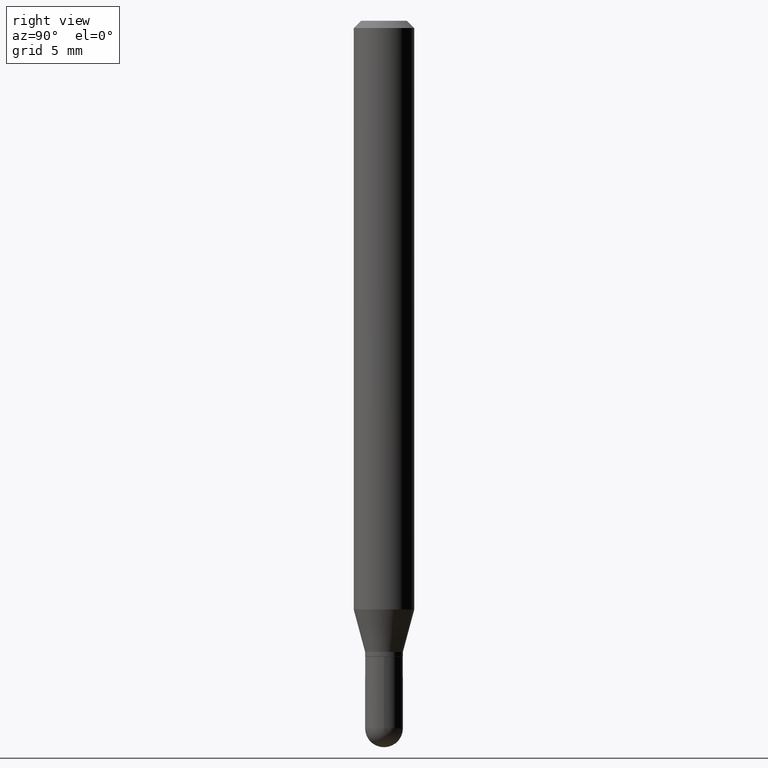
[diagram: clean part render]
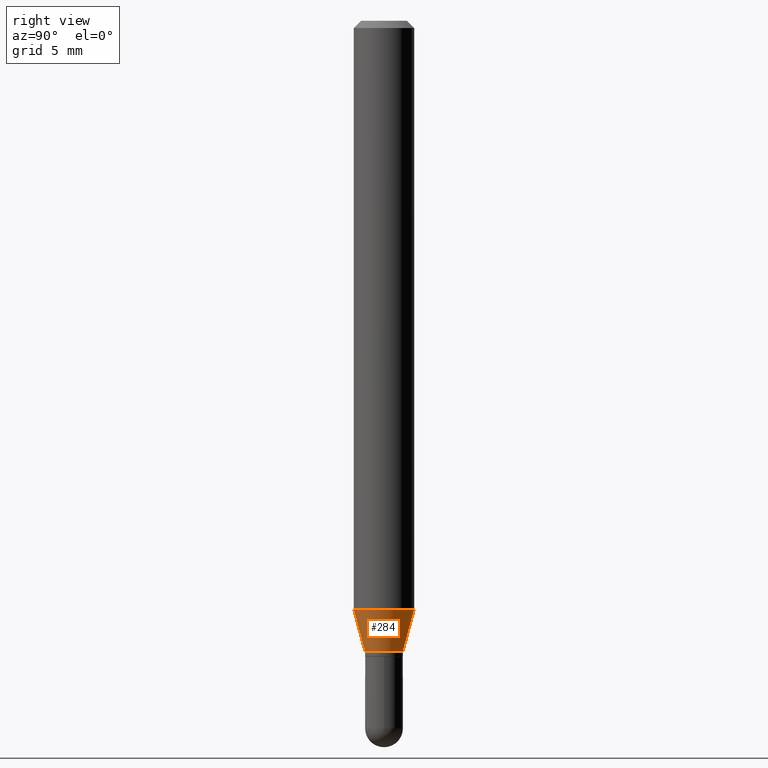
[diagram: same view with one face highlighted and labeled with its STEP entity id]
A machine part, right view. The second image highlights one B-rep face of the part: STEP entity #284.
In plain terms, the highlighted conical surface has half-angle 15 deg.
Its self-contained STEP definition (entity closure, byte-faithful):
#24 = CARTESIAN_POINT ( 'NONE',  ( 2.972726297299607962E-29, -4.243408684315521466E-15, -1.215483408562511247 ) ) ;
#30 = AXIS2_PLACEMENT_3D ( 'NONE', #24, #133, #250 ) ;
#50 = CARTESIAN_POINT ( 'NONE',  ( -2.726846925636181991E-16, -0.03905000000000474758, -1.303000000000000380 ) ) ;
#54 = VERTEX_POINT ( 'NONE', #221 ) ;
#57 = DIRECTION ( 'NONE',  ( -1.807323732225331323E-15, -0.2588190451025183525, 0.9659258262890689783 ) ) ;
#79 = CIRCLE ( 'NONE', #130, 0.03905000000000019567 ) ;
#101 = ORIENTED_EDGE ( 'NONE', *, *, #379, .F. ) ;
#113 = EDGE_CURVE ( 'NONE', #300, #448, #154, .T. ) ;
#121 = CONICAL_SURFACE ( 'NONE', #177, 0.03905000000000019567, 0.2617993877991504625 ) ;
#130 = AXIS2_PLACEMENT_3D ( 'NONE', #322, #403, #479 ) ;
#133 = DIRECTION ( 'NONE',  ( -2.445715240831873182E-29, 3.491128430402830124E-15, 1.000000000000000000 ) ) ;
#154 = LINE ( 'NONE', #346, #305 ) ;
#159 = CARTESIAN_POINT ( 'NONE',  ( -4.364351673553621364E-16, -0.06250000000000427436, -1.215483408562511025 ) ) ;
#177 = AXIS2_PLACEMENT_3D ( 'NONE', #363, #236, #440 ) ;
#179 = LINE ( 'NONE', #50, #281 ) ;
#183 = DIRECTION ( 'NONE',  ( 1.839019923739601499E-15, 0.2588190451025251249, 0.9659258262890670910 ) ) ;
#197 = EDGE_LOOP ( 'NONE', ( #457, #381, #101, #467 ) ) ;
#221 = CARTESIAN_POINT ( 'NONE',  ( -2.726846925636181991E-16, -0.03905000000000474758, -1.303000000000000380 ) ) ;
#236 = DIRECTION ( 'NONE',  ( -2.445715240831873182E-29, 3.491128430402830124E-15, 1.000000000000000000 ) ) ;
#250 = DIRECTION ( 'NONE',  ( -6.982962677686265922E-15, -1.000000000000000000, 4.370956789862821150E-15 ) ) ;
#252 = CIRCLE ( 'NONE', #30, 0.06250000000000000000 ) ;
#281 = VECTOR ( 'NONE', #57, 39.37007874015748854 ) ;
#284 = ADVANCED_FACE ( 'NONE', ( #326 ), #121, .T. ) ;
#300 = VERTEX_POINT ( 'NONE', #476 ) ;
#305 = VECTOR ( 'NONE', #183, 39.37007874015748854 ) ;
#322 = CARTESIAN_POINT ( 'NONE',  ( 3.186766958803931544E-29, -4.548940344814889109E-15, -1.303000000000000380 ) ) ;
#326 = FACE_OUTER_BOUND ( 'NONE', #197, .T. ) ;
#327 = VERTEX_POINT ( 'NONE', #159 ) ;
#331 = EDGE_CURVE ( 'NONE', #54, #300, #79, .T. ) ;
#346 = CARTESIAN_POINT ( 'NONE',  ( 2.774669383143523138E-16, 0.03904999999999564375, -1.303000000000000380 ) ) ;
#363 = CARTESIAN_POINT ( 'NONE',  ( 3.186766958803931544E-29, -4.548940344814889109E-15, -1.303000000000000380 ) ) ;
#379 = EDGE_CURVE ( 'NONE', #327, #448, #252, .T. ) ;
#381 = ORIENTED_EDGE ( 'NONE', *, *, #113, .T. ) ;
#403 = DIRECTION ( 'NONE',  ( -2.445715240831873182E-29, 3.491128430402830124E-15, 1.000000000000000000 ) ) ;
#417 = CARTESIAN_POINT ( 'NONE',  ( 4.440892098500919026E-16, 0.06249999999999571176, -1.215483408562511469 ) ) ;
#440 = DIRECTION ( 'NONE',  ( -6.982962677686265922E-15, -1.000000000000000000, 0.000000000000000000 ) ) ;
#448 = VERTEX_POINT ( 'NONE', #417 ) ;
#457 = ORIENTED_EDGE ( 'NONE', *, *, #331, .T. ) ;
#467 = ORIENTED_EDGE ( 'NONE', *, *, #472, .F. ) ;
#472 = EDGE_CURVE ( 'NONE', #54, #327, #179, .T. ) ;
#476 = CARTESIAN_POINT ( 'NONE',  ( 3.607780740822223794E-16, 0.03904999999999564375, -1.303000000000000380 ) ) ;
#479 = DIRECTION ( 'NONE',  ( -6.982962677686265922E-15, -1.000000000000000000, 0.000000000000000000 ) ) ;